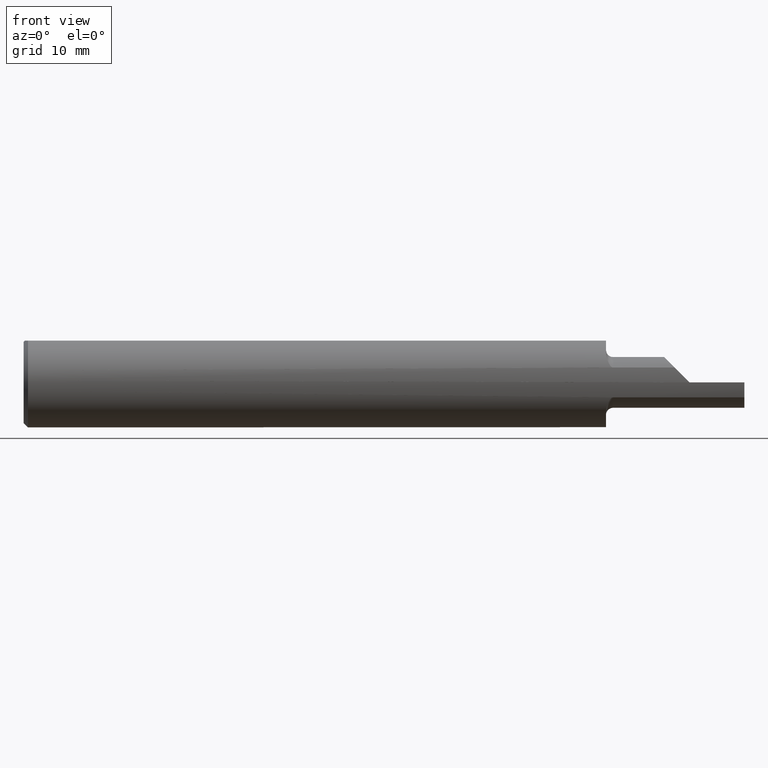
[diagram: clean part render]
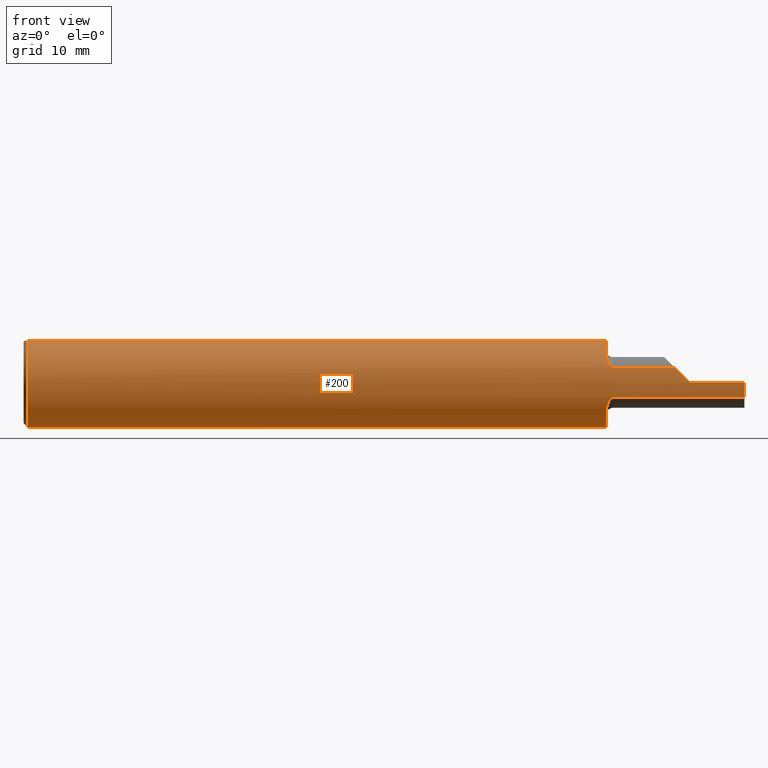
[diagram: same view with one face highlighted and labeled with its STEP entity id]
A machine part, front view. The second image highlights one B-rep face of the part: STEP entity #200.
In plain terms, the highlighted cylindrical surface (partial cylindrical patch) has radius 3.9649 mm, axis along (-1, -0, -0).
Its self-contained STEP definition (entity closure, byte-faithful):
#2 = CARTESIAN_POINT ( 'NONE',  ( 2.039346387196744992, -0.1465602152313723594, 0.05373951875293322272 ) ) ;
#8 = EDGE_CURVE ( 'NONE', #135, #227, #471, .T. ) ;
#17 = CIRCLE ( 'NONE', #794, 0.1560999999999999888 ) ;
#19 = CARTESIAN_POINT ( 'NONE',  ( 2.039351722746849838, -0.1465615025502167157, -0.05373597933534086935 ) ) ;
#31 = VERTEX_POINT ( 'NONE', #785 ) ;
#39 = CARTESIAN_POINT ( 'NONE',  ( 2.038224949848629119, -0.1462116317861902048, -0.05468660471535821688 ) ) ;
#40 = ORIENTED_EDGE ( 'NONE', *, *, #968, .T. ) ;
#48 = VECTOR ( 'NONE', #938, 39.37007874015748143 ) ;
#60 = DIRECTION ( 'NONE',  ( 1.000000000000000000, -0.000000000000000000, -0.000000000000000000 ) ) ;
#62 = CARTESIAN_POINT ( 'NONE',  ( 0.01499999999999970281, 0.000000000000000000, 0.000000000000000000 ) ) ;
#66 = VECTOR ( 'NONE', #845, 39.37007874015748143 ) ;
#67 = CARTESIAN_POINT ( 'NONE',  ( 2.020000000000000018, 0.000000000000000000, 0.000000000000000000 ) ) ;
#79 = CARTESIAN_POINT ( 'NONE',  ( 2.221000000000000085, -0.1472695137976346991, 0.05175809410911754588 ) ) ;
#87 = CARTESIAN_POINT ( 'NONE',  ( 2.022196435196732978, -0.1292912702572164563, 0.08767123446451231816 ) ) ;
#90 = CARTESIAN_POINT ( 'NONE',  ( 2.019999999999999130, -0.1184005327550379794, 0.1019095738247443178 ) ) ;
#91 = CIRCLE ( 'NONE', #264, 0.1560999999999999888 ) ;
#111 = LINE ( 'NONE', #168, #48 ) ;
#121 = VERTEX_POINT ( 'NONE', #276 ) ;
#135 = VERTEX_POINT ( 'NONE', #509 ) ;
#146 = CARTESIAN_POINT ( 'NONE',  ( 2.310000000000000053, -0.1560999679692471886, 9.999999999973052634E-05 ) ) ;
#155 = ORIENTED_EDGE ( 'NONE', *, *, #242, .T. ) ;
#156 = CARTESIAN_POINT ( 'NONE',  ( 2.038188893766193832, -0.1461994758887454893, 0.05471906550179909956 ) ) ;
#157 = AXIS2_PLACEMENT_3D ( 'NONE', #628, #184, #339 ) ;
#162 = CARTESIAN_POINT ( 'NONE',  ( 2.292364034161542108, -0.1560886701028428303, 0.01773596583845823624 ) ) ;
#165 = EDGE_CURVE ( 'NONE', #227, #330, #296, .T. ) ;
#166 = CARTESIAN_POINT ( 'NONE',  ( 2.029076693190785097, -0.1408182624999438637, 0.06756946090661444804 ) ) ;
#168 = CARTESIAN_POINT ( 'NONE',  ( 2.500000000000000000, -0.05756040305626781983, 0.1450999999999999512 ) ) ;
#174 = LINE ( 'NONE', #467, #658 ) ;
#184 = DIRECTION ( 'NONE',  ( 1.000000000000000000, 0.000000000000000000, 0.000000000000000000 ) ) ;
#189 = CARTESIAN_POINT ( 'NONE',  ( 2.022184834623027783, -0.1292572780652835041, -0.08772123080144229867 ) ) ;
#200 = ADVANCED_FACE ( 'NONE', ( #368 ), #503, .T. ) ;
#205 = CARTESIAN_POINT ( 'NONE',  ( 0.01499999999999970281, 0.000000000000000000, -0.1560999999999999888 ) ) ;
#215 = CARTESIAN_POINT ( 'NONE',  ( 0.01499999999999970281, 0.000000000000000000, 0.000000000000000000 ) ) ;
#220 = ORIENTED_EDGE ( 'NONE', *, *, #418, .F. ) ;
#222 = CARTESIAN_POINT ( 'NONE',  ( 2.041958798426077415, -0.1470959791559693364, 0.05225519572836449800 ) ) ;
#226 = CARTESIAN_POINT ( 'NONE',  ( 2.020000000000000018, 0.05756040305626781289, 0.1450999999999999512 ) ) ;
#227 = VERTEX_POINT ( 'NONE', #146 ) ;
#238 = VECTOR ( 'NONE', #403, 39.37007874015748143 ) ;
#242 = EDGE_CURVE ( 'NONE', #533, #566, #847, .T. ) ;
#247 = CARTESIAN_POINT ( 'NONE',  ( 2.258341905890882462, -0.1472695137976346991, 0.05175809410911749731 ) ) ;
#260 = CARTESIAN_POINT ( 'NONE',  ( 2.035113571315068981, -0.1450112207500813821, -0.05782715517876001188 ) ) ;
#264 = AXIS2_PLACEMENT_3D ( 'NONE', #215, #60, #346 ) ;
#271 = EDGE_CURVE ( 'NONE', #740, #850, #17, .T. ) ;
#276 = CARTESIAN_POINT ( 'NONE',  ( 2.044999999999999929, -0.1472695137976346991, 0.05175809410911754588 ) ) ;
#280 = DIRECTION ( 'NONE',  ( -1.000000000000000000, -0.000000000000000000, -0.000000000000000000 ) ) ;
#296 =( BOUNDED_CURVE ( )  B_SPLINE_CURVE ( 3, ( #913, #162, #324, #247 ),
 .UNSPECIFIED., .F., .F. ) 
 B_SPLINE_CURVE_WITH_KNOTS ( ( 4, 4 ),
 ( 4.713029595418895212, 5.050356325447889816 ),
 .UNSPECIFIED. ) 
 CURVE ( )  GEOMETRIC_REPRESENTATION_ITEM ( )  RATIONAL_B_SPLINE_CURVE ( ( 1.000000000000000000, 0.9905400143130563828, 0.9905400143130563828, 1.000000000000000000 ) ) 
 REPRESENTATION_ITEM ( '' )  );
#300 = B_SPLINE_CURVE_WITH_KNOTS ( 'NONE', 3,
 ( #528, #474, #626, #189, #777, #928, #545, #860, #260, #39, #19, #480, #484, #772 ),
 .UNSPECIFIED., .F., .F.,
 ( 4, 2, 2, 2, 2, 2, 4 ),
 ( 0.000000000000000000, 0.0004571115948190633701, 0.0009142231896381267401, 0.001371334784457190056, 0.001599890581866726972, 0.001714168480571488925, 0.001828446379276250661 ),
 .UNSPECIFIED. ) ;
#305 = CARTESIAN_POINT ( 'NONE',  ( 2.033431866506538288, -0.1440183431193643449, 0.06027419116281393374 ) ) ;
#310 = EDGE_CURVE ( 'NONE', #121, #330, #697, .T. ) ;
#324 = CARTESIAN_POINT ( 'NONE',  ( 2.274980218814131927, -0.1531170741235404198, 0.03511978118586850384 ) ) ;
#330 = VERTEX_POINT ( 'NONE', #927 ) ;
#331 = EDGE_CURVE ( 'NONE', #121, #429, #917, .T. ) ;
#339 = DIRECTION ( 'NONE',  ( 0.000000000000000000, 0.000000000000000000, -1.000000000000000000 ) ) ;
#340 = DIRECTION ( 'NONE',  ( -1.000000000000000000, -0.000000000000000000, -0.000000000000000000 ) ) ;
#346 = DIRECTION ( 'NONE',  ( 0.000000000000000000, 0.000000000000000000, -1.000000000000000000 ) ) ;
#348 = AXIS2_PLACEMENT_3D ( 'NONE', #62, #520, #362 ) ;
#362 = DIRECTION ( 'NONE',  ( 0.000000000000000000, 0.000000000000000000, -1.000000000000000000 ) ) ;
#366 = CARTESIAN_POINT ( 'NONE',  ( 2.020000000000000018, 0.000000000000000000, 0.000000000000000000 ) ) ;
#368 = FACE_OUTER_BOUND ( 'NONE', #735, .T. ) ;
#372 = ORIENTED_EDGE ( 'NONE', *, *, #8, .T. ) ;
#382 = VERTEX_POINT ( 'NONE', #851 ) ;
#392 = CARTESIAN_POINT ( 'NONE',  ( 2.020000000000000018, -0.1142537450722733300, 0.1063639588251582974 ) ) ;
#395 = LINE ( 'NONE', #787, #238 ) ;
#403 = DIRECTION ( 'NONE',  ( 1.000000000000000000, 0.000000000000000000, 0.000000000000000000 ) ) ;
#418 = EDGE_CURVE ( 'NONE', #31, #513, #733, .T. ) ;
#429 = VERTEX_POINT ( 'NONE', #795 ) ;
#455 = AXIS2_PLACEMENT_3D ( 'NONE', #790, #569, #488 ) ;
#467 = CARTESIAN_POINT ( 'NONE',  ( 2.221000000000000085, -0.1472695137976346991, -0.05175809410911754588 ) ) ;
#471 = CIRCLE ( 'NONE', #455, 0.1560999999999999888 ) ;
#474 = CARTESIAN_POINT ( 'NONE',  ( 2.020000000000000462, -0.1184007186031942743, -0.1019093741908824180 ) ) ;
#480 = CARTESIAN_POINT ( 'NONE',  ( 2.041959507545617392, -0.1470959310543898668, -0.05225530185682172868 ) ) ;
#484 = CARTESIAN_POINT ( 'NONE',  ( 2.043455704562869624, -0.1472695137976399726, -0.05175809410911982877 ) ) ;
#488 = DIRECTION ( 'NONE',  ( 0.000000000000000000, 0.000000000000000000, 1.000000000000000000 ) ) ;
#503 = CYLINDRICAL_SURFACE ( 'NONE', #923, 0.1560999999999999888 ) ;
#509 = CARTESIAN_POINT ( 'NONE',  ( 2.310000000000000053, -0.1560999999999999888, -3.979970649922725226E-17 ) ) ;
#513 = VERTEX_POINT ( 'NONE', #859 ) ;
#520 = DIRECTION ( 'NONE',  ( 1.000000000000000000, -0.000000000000000000, -0.000000000000000000 ) ) ;
#527 = CARTESIAN_POINT ( 'NONE',  ( 2.023462723249350059, -0.1324931889103355964, 0.08274432694253380793 ) ) ;
#528 = CARTESIAN_POINT ( 'NONE',  ( 2.020000000000000018, -0.1142537450722733300, -0.1063639588251582974 ) ) ;
#529 = ORIENTED_EDGE ( 'NONE', *, *, #948, .T. ) ;
#530 = CARTESIAN_POINT ( 'NONE',  ( 2.044999999999999929, -0.1472695137976346991, 0.05175809410911754588 ) ) ;
#533 = VERTEX_POINT ( 'NONE', #205 ) ;
#534 = CARTESIAN_POINT ( 'NONE',  ( 2.026940211988513152, -0.1382857370966606159, 0.07265069624192234399 ) ) ;
#542 = CARTESIAN_POINT ( 'NONE',  ( 2.020000000000000018, -0.1142537450722733300, -0.1063639588251582974 ) ) ;
#543 = ORIENTED_EDGE ( 'NONE', *, *, #271, .F. ) ;
#545 = CARTESIAN_POINT ( 'NONE',  ( 2.029094334707839398, -0.1408376601564307884, -0.06752940149352162913 ) ) ;
#555 = CARTESIAN_POINT ( 'NONE',  ( 2.500000000000000000, -0.1560999999999999888, -3.979970649922725226E-17 ) ) ;
#564 = EDGE_CURVE ( 'NONE', #902, #533, #91, .T. ) ;
#566 = VERTEX_POINT ( 'NONE', #818 ) ;
#569 = DIRECTION ( 'NONE',  ( -1.000000000000000000, -0.000000000000000000, -0.000000000000000000 ) ) ;
#603 = AXIS2_PLACEMENT_3D ( 'NONE', #366, #884, #958 ) ;
#626 = CARTESIAN_POINT ( 'NONE',  ( 2.020457377058164194, -0.1222208176751872072, -0.09728581599069098529 ) ) ;
#628 = CARTESIAN_POINT ( 'NONE',  ( 2.500000000000000000, 0.000000000000000000, 0.000000000000000000 ) ) ;
#643 = EDGE_CURVE ( 'NONE', #382, #429, #676, .T. ) ;
#652 = ORIENTED_EDGE ( 'NONE', *, *, #869, .T. ) ;
#658 = VECTOR ( 'NONE', #340, 39.37007874015748143 ) ;
#676 = CIRCLE ( 'NONE', #603, 0.1560999999999999888 ) ;
#681 = DIRECTION ( 'NONE',  ( 1.000000000000000000, 0.000000000000000000, 0.000000000000000000 ) ) ;
#697 = LINE ( 'NONE', #79, #66 ) ;
#723 = CARTESIAN_POINT ( 'NONE',  ( 0.01499999999999970975, -0.05756040305626781983, 0.1450999999999999512 ) ) ;
#733 = CIRCLE ( 'NONE', #157, 0.1560999999999999888 ) ;
#735 = EDGE_LOOP ( 'NONE', ( #804, #220, #40, #372, #792, #898, #765, #788, #652, #858, #155, #529, #543, #876 ) ) ;
#740 = VERTEX_POINT ( 'NONE', #542 ) ;
#758 = CARTESIAN_POINT ( 'NONE',  ( 2.035093509039023640, -0.1449998908706355838, 0.05785545061298556779 ) ) ;
#765 = ORIENTED_EDGE ( 'NONE', *, *, #331, .T. ) ;
#771 = CARTESIAN_POINT ( 'NONE',  ( 2.043446355305317041, -0.1472695137976346713, 0.05175809410911755976 ) ) ;
#772 = CARTESIAN_POINT ( 'NONE',  ( 2.044999999999999929, -0.1472695137976346991, -0.05175809410911754588 ) ) ;
#777 = CARTESIAN_POINT ( 'NONE',  ( 2.023460603892426324, -0.1324887887535367570, -0.08275148820235218861 ) ) ;
#785 = CARTESIAN_POINT ( 'NONE',  ( 2.500000000000000000, -0.1560999999999999333, -3.979970649922725226E-17 ) ) ;
#787 = CARTESIAN_POINT ( 'NONE',  ( 2.500000000000000000, 0.05756040305626781983, 0.1450999999999999512 ) ) ;
#788 = ORIENTED_EDGE ( 'NONE', *, *, #643, .F. ) ;
#790 = CARTESIAN_POINT ( 'NONE',  ( 2.310000000000000053, 0.000000000000000000, 0.000000000000000000 ) ) ;
#792 = ORIENTED_EDGE ( 'NONE', *, *, #165, .T. ) ;
#794 = AXIS2_PLACEMENT_3D ( 'NONE', #67, #681, #980 ) ;
#795 = CARTESIAN_POINT ( 'NONE',  ( 2.020000000000000018, -0.1142537450722733300, 0.1063639588251582974 ) ) ;
#804 = ORIENTED_EDGE ( 'NONE', *, *, #900, .F. ) ;
#818 = CARTESIAN_POINT ( 'NONE',  ( 0.01499999999999970281, 0.05756040305626781983, 0.1450999999999999512 ) ) ;
#823 = VERTEX_POINT ( 'NONE', #918 ) ;
#837 = CARTESIAN_POINT ( 'NONE',  ( 2.020462901579271442, -0.1222564506482442942, 0.09724113425988757664 ) ) ;
#845 = DIRECTION ( 'NONE',  ( 1.000000000000000000, 0.000000000000000000, 0.000000000000000000 ) ) ;
#847 = CIRCLE ( 'NONE', #348, 0.1560999999999999888 ) ;
#850 = VERTEX_POINT ( 'NONE', #226 ) ;
#851 = CARTESIAN_POINT ( 'NONE',  ( 2.020000000000000018, -0.05756040305626783371, 0.1450999999999999512 ) ) ;
#852 = EDGE_CURVE ( 'NONE', #740, #823, #300, .T. ) ;
#858 = ORIENTED_EDGE ( 'NONE', *, *, #564, .T. ) ;
#859 = CARTESIAN_POINT ( 'NONE',  ( 2.500000000000000000, -0.1472695137976346991, -0.05175809410911760139 ) ) ;
#860 = CARTESIAN_POINT ( 'NONE',  ( 2.033463538880901034, -0.1440383527506709227, -0.06022646497160673296 ) ) ;
#866 = DIRECTION ( 'NONE',  ( -1.000000000000000000, -0.000000000000000000, -0.000000000000000000 ) ) ;
#869 = EDGE_CURVE ( 'NONE', #382, #902, #111, .T. ) ;
#875 = LINE ( 'NONE', #555, #924 ) ;
#876 = ORIENTED_EDGE ( 'NONE', *, *, #852, .T. ) ;
#884 = DIRECTION ( 'NONE',  ( 1.000000000000000000, 0.000000000000000000, 0.000000000000000000 ) ) ;
#890 = DIRECTION ( 'NONE',  ( 0.000000000000000000, 0.000000000000000000, 1.000000000000000000 ) ) ;
#898 = ORIENTED_EDGE ( 'NONE', *, *, #310, .F. ) ;
#900 = EDGE_CURVE ( 'NONE', #513, #823, #174, .T. ) ;
#902 = VERTEX_POINT ( 'NONE', #723 ) ;
#913 = CARTESIAN_POINT ( 'NONE',  ( 2.310000000000000053, -0.1560999679692471886, 9.999999999973052634E-05 ) ) ;
#917 = B_SPLINE_CURVE_WITH_KNOTS ( 'NONE', 3,
 ( #530, #771, #222, #2, #156, #758, #305, #166, #534, #527, #87, #837, #90, #392 ),
 .UNSPECIFIED., .F., .F.,
 ( 4, 2, 2, 2, 2, 2, 4 ),
 ( 0.000000000000000000, 0.0001161074790415155125, 0.0002322149580830310249, 0.0004644299161660623751, 0.0009288598323321255092, 0.001393289748498188589, 0.001857719664664251886 ),
 .UNSPECIFIED. ) ;
#918 = CARTESIAN_POINT ( 'NONE',  ( 2.044999999999999929, -0.1472695137976346991, -0.05175809410911754588 ) ) ;
#923 = AXIS2_PLACEMENT_3D ( 'NONE', #963, #280, #890 ) ;
#924 = VECTOR ( 'NONE', #866, 39.37007874015748143 ) ;
#927 = CARTESIAN_POINT ( 'NONE',  ( 2.258341905890882462, -0.1472695137976346991, 0.05175809410911749731 ) ) ;
#928 = CARTESIAN_POINT ( 'NONE',  ( 2.026938296605558243, -0.1382834154682844041, -0.07265524724002503376 ) ) ;
#938 = DIRECTION ( 'NONE',  ( -1.000000000000000000, -0.000000000000000000, -0.000000000000000000 ) ) ;
#948 = EDGE_CURVE ( 'NONE', #566, #850, #395, .T. ) ;
#958 = DIRECTION ( 'NONE',  ( 0.000000000000000000, 0.000000000000000000, -1.000000000000000000 ) ) ;
#963 = CARTESIAN_POINT ( 'NONE',  ( 2.500000000000000000, 0.000000000000000000, 0.000000000000000000 ) ) ;
#968 = EDGE_CURVE ( 'NONE', #31, #135, #875, .T. ) ;
#980 = DIRECTION ( 'NONE',  ( 0.000000000000000000, 0.000000000000000000, -1.000000000000000000 ) ) ;